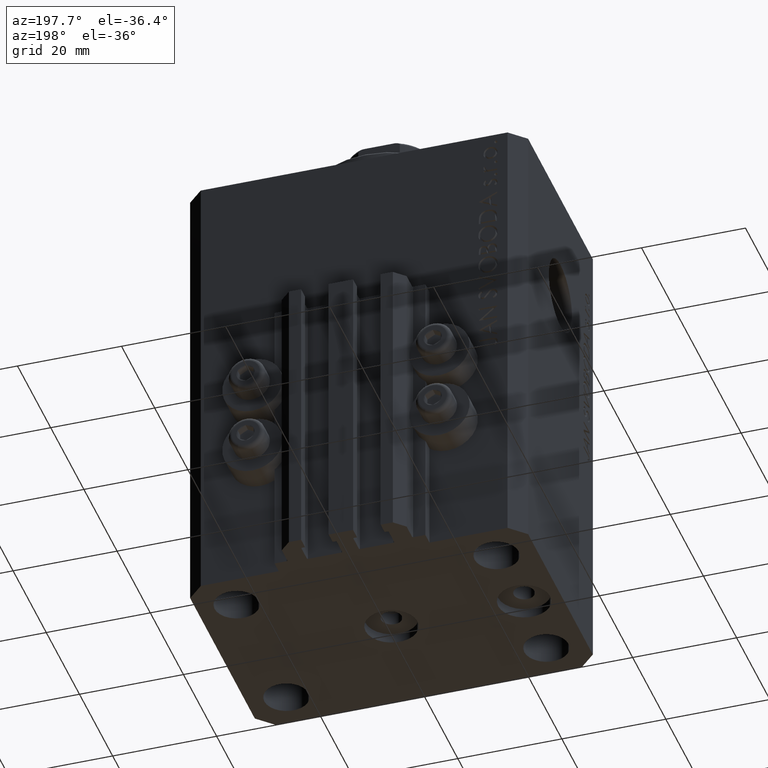
[diagram: clean part render]
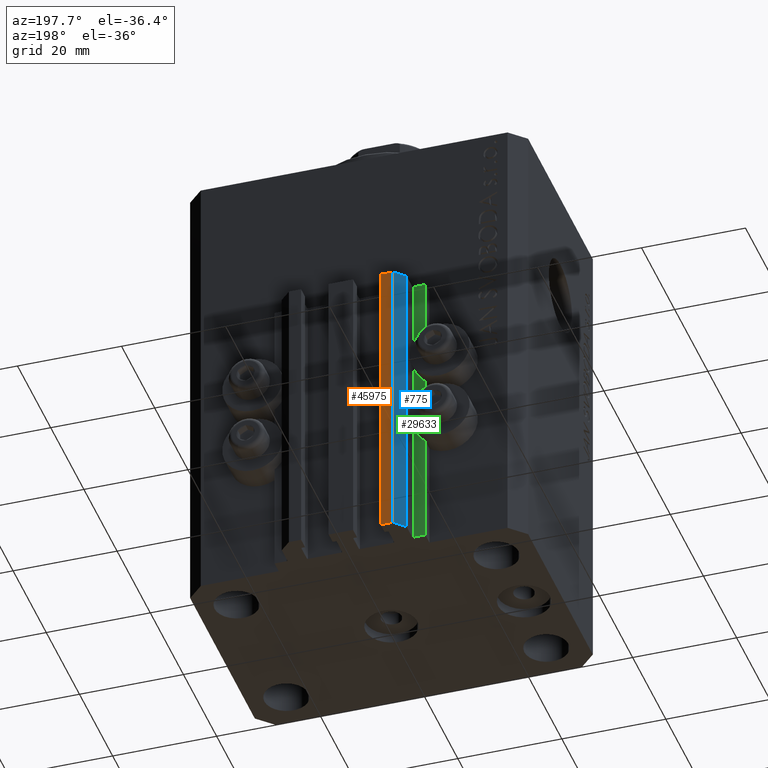
[diagram: same view with three faces highlighted in distinct colors, each labeled with its STEP entity id]
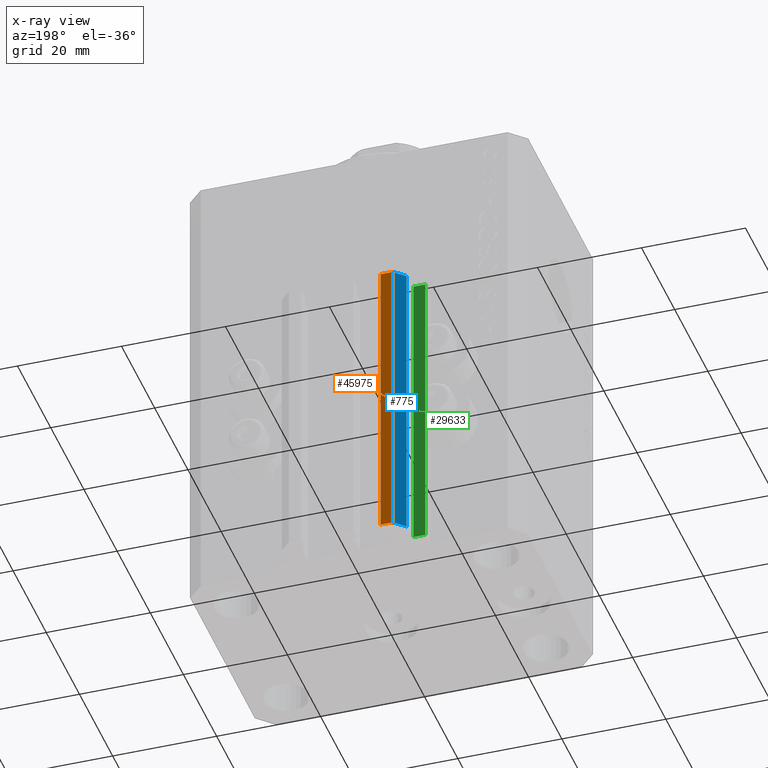
[diagram: x-ray of the same camera — body ghosted, the three highlighted faces saturated]
A machine part, auxiliary view with three faces highlighted in distinct colors.
The next image is the same camera in x-ray (body ghosted, the three faces saturated) — at least one of them is partly hidden behind the body in this view.
Their STEP definitions:

[orange] entity #45975 — the highlighted planar face has unit normal (0, 1, 0).
#1005 = CARTESIAN_POINT ( 'NONE',  ( -10.00000000000000000, 30.49999999999948841, -90.00000000000000000 ) ) ;
#1877 = CARTESIAN_POINT ( 'NONE',  ( -7.650000000000000355, 30.49999999999948486, -90.00000000000000000 ) ) ;
#2407 = VERTEX_POINT ( 'NONE', #22312 ) ;
#4062 = DIRECTION ( 'NONE',  ( -1.000000000000000000, 1.476360405086644852E-15, 0.000000000000000000 ) ) ;
#5125 = ORIENTED_EDGE ( 'NONE', *, *, #28945, .T. ) ;
#7080 = ORIENTED_EDGE ( 'NONE', *, *, #9353, .F. ) ;
#7967 = VERTEX_POINT ( 'NONE', #29293 ) ;
#9353 = EDGE_CURVE ( 'NONE', #11530, #32398, #13134, .T. ) ;
#10494 = VECTOR ( 'NONE', #41747, 1000.000000000000000 ) ;
#11008 = LINE ( 'NONE', #26127, #31550 ) ;
#11530 = VERTEX_POINT ( 'NONE', #42892 ) ;
#13134 = LINE ( 'NONE', #27298, #29483 ) ;
#14475 = CARTESIAN_POINT ( 'NONE',  ( -7.650000000000000355, 30.49999999999948486, -90.00000000000000000 ) ) ;
#15984 = EDGE_CURVE ( 'NONE', #11530, #2407, #32700, .T. ) ;
#16499 = DIRECTION ( 'NONE',  ( -1.000000000000000000, 1.476360405086644655E-15, 0.000000000000000000 ) ) ;
#19900 = CARTESIAN_POINT ( 'NONE',  ( -7.650000000000000355, 30.49999999999948486, -33.00000000000000000 ) ) ;
#22312 = CARTESIAN_POINT ( 'NONE',  ( -10.00000000000000000, 30.49999999999948841, -90.00000000000000000 ) ) ;
#26127 = CARTESIAN_POINT ( 'NONE',  ( -7.650000000000000355, 30.49999999999948486, -33.00000000000000000 ) ) ;
#27298 = CARTESIAN_POINT ( 'NONE',  ( -7.650000000000000355, 30.49999999999948486, -90.00000000000000000 ) ) ;
#28945 = EDGE_CURVE ( 'NONE', #2407, #7967, #33609, .T. ) ;
#29269 = AXIS2_PLACEMENT_3D ( 'NONE', #1877, #31355, #16499 ) ;
#29293 = CARTESIAN_POINT ( 'NONE',  ( -10.00000000000000000, 30.49999999999948841, -33.00000000000000000 ) ) ;
#29483 = VECTOR ( 'NONE', #31354, 1000.000000000000000 ) ;
#31354 = DIRECTION ( 'NONE',  ( 0.000000000000000000, 0.000000000000000000, 1.000000000000000000 ) ) ;
#31355 = DIRECTION ( 'NONE',  ( 1.476360405086644655E-15, 1.000000000000000000, -0.000000000000000000 ) ) ;
#31550 = VECTOR ( 'NONE', #4062, 1000.000000000000000 ) ;
#31824 = FACE_OUTER_BOUND ( 'NONE', #46357, .T. ) ;
#32398 = VERTEX_POINT ( 'NONE', #19900 ) ;
#32700 = LINE ( 'NONE', #14475, #39249 ) ;
#33609 = LINE ( 'NONE', #1005, #10494 ) ;
#33650 = ORIENTED_EDGE ( 'NONE', *, *, #45750, .F. ) ;
#34720 = PLANE ( 'NONE',  #29269 ) ;
#37775 = ORIENTED_EDGE ( 'NONE', *, *, #15984, .T. ) ;
#39249 = VECTOR ( 'NONE', #43491, 1000.000000000000000 ) ;
#41747 = DIRECTION ( 'NONE',  ( 0.000000000000000000, 0.000000000000000000, 1.000000000000000000 ) ) ;
#42892 = CARTESIAN_POINT ( 'NONE',  ( -7.650000000000000355, 30.49999999999948486, -90.00000000000000000 ) ) ;
#43491 = DIRECTION ( 'NONE',  ( -1.000000000000000000, 1.476360405086644852E-15, 0.000000000000000000 ) ) ;
#45750 = EDGE_CURVE ( 'NONE', #32398, #7967, #11008, .T. ) ;
#45975 = ADVANCED_FACE ( 'NONE', ( #31824 ), #34720, .T. ) ;
#46357 = EDGE_LOOP ( 'NONE', ( #33650, #7080, #37775, #5125 ) ) ;

[blue] entity #775 — the highlighted planar face has unit normal (-0.7071, 0.7071, 0).
#775 = ADVANCED_FACE ( 'NONE', ( #32081 ), #2365, .T. ) ;
#1005 = CARTESIAN_POINT ( 'NONE',  ( -10.00000000000000000, 30.49999999999948841, -90.00000000000000000 ) ) ;
#1382 = CARTESIAN_POINT ( 'NONE',  ( -10.00000000000000000, 30.49999999999948841, -90.00000000000000000 ) ) ;
#1484 = LINE ( 'NONE', #8921, #7884 ) ;
#2365 = PLANE ( 'NONE',  #26422 ) ;
#2407 = VERTEX_POINT ( 'NONE', #22312 ) ;
#3492 = ORIENTED_EDGE ( 'NONE', *, *, #26777, .F. ) ;
#3898 = DIRECTION ( 'NONE',  ( -0.7071067811865472397, -0.7071067811865479058, 0.000000000000000000 ) ) ;
#6920 = ORIENTED_EDGE ( 'NONE', *, *, #31797, .T. ) ;
#7357 = ORIENTED_EDGE ( 'NONE', *, *, #16576, .T. ) ;
#7884 = VECTOR ( 'NONE', #23311, 1000.000000000000000 ) ;
#7967 = VERTEX_POINT ( 'NONE', #29293 ) ;
#8921 = CARTESIAN_POINT ( 'NONE',  ( -12.00000000000000000, 28.49999999999948841, -90.00000000000000000 ) ) ;
#10494 = VECTOR ( 'NONE', #41747, 1000.000000000000000 ) ;
#10848 = LINE ( 'NONE', #14677, #21167 ) ;
#14677 = CARTESIAN_POINT ( 'NONE',  ( -10.00000000000000000, 30.49999999999948841, -33.00000000000000000 ) ) ;
#16576 = EDGE_CURVE ( 'NONE', #29953, #20885, #1484, .T. ) ;
#16980 = CARTESIAN_POINT ( 'NONE',  ( -10.00000000000000000, 30.49999999999948841, -90.00000000000000000 ) ) ;
#19809 = VECTOR ( 'NONE', #27030, 999.9999999999998863 ) ;
#20885 = VERTEX_POINT ( 'NONE', #47038 ) ;
#21167 = VECTOR ( 'NONE', #3898, 999.9999999999998863 ) ;
#22312 = CARTESIAN_POINT ( 'NONE',  ( -10.00000000000000000, 30.49999999999948841, -90.00000000000000000 ) ) ;
#23311 = DIRECTION ( 'NONE',  ( 0.000000000000000000, 0.000000000000000000, 1.000000000000000000 ) ) ;
#26422 = AXIS2_PLACEMENT_3D ( 'NONE', #16980, #28963, #47156 ) ;
#26777 = EDGE_CURVE ( 'NONE', #7967, #20885, #10848, .T. ) ;
#27030 = DIRECTION ( 'NONE',  ( -0.7071067811865472397, -0.7071067811865479058, 0.000000000000000000 ) ) ;
#28945 = EDGE_CURVE ( 'NONE', #2407, #7967, #33609, .T. ) ;
#28963 = DIRECTION ( 'NONE',  ( -0.7071067811865479058, 0.7071067811865472397, 0.000000000000000000 ) ) ;
#29293 = CARTESIAN_POINT ( 'NONE',  ( -10.00000000000000000, 30.49999999999948841, -33.00000000000000000 ) ) ;
#29953 = VERTEX_POINT ( 'NONE', #44628 ) ;
#31064 = ORIENTED_EDGE ( 'NONE', *, *, #28945, .F. ) ;
#31797 = EDGE_CURVE ( 'NONE', #2407, #29953, #41648, .T. ) ;
#32081 = FACE_OUTER_BOUND ( 'NONE', #39867, .T. ) ;
#33609 = LINE ( 'NONE', #1005, #10494 ) ;
#39867 = EDGE_LOOP ( 'NONE', ( #3492, #31064, #6920, #7357 ) ) ;
#41648 = LINE ( 'NONE', #1382, #19809 ) ;
#41747 = DIRECTION ( 'NONE',  ( 0.000000000000000000, 0.000000000000000000, 1.000000000000000000 ) ) ;
#44628 = CARTESIAN_POINT ( 'NONE',  ( -12.00000000000000000, 28.49999999999948841, -90.00000000000000000 ) ) ;
#47038 = CARTESIAN_POINT ( 'NONE',  ( -12.00000000000000000, 28.49999999999948841, -33.00000000000000000 ) ) ;
#47156 = DIRECTION ( 'NONE',  ( -0.7071067811865472397, -0.7071067811865479058, 0.000000000000000000 ) ) ;

[green] entity #29633 — the highlighted planar face has unit normal (0, 1, 0).
#336 = EDGE_LOOP ( 'NONE', ( #22829, #26528, #33931, #21361 ) ) ;
#915 = EDGE_CURVE ( 'NONE', #18126, #959, #26797, .T. ) ;
#959 = VERTEX_POINT ( 'NONE', #19831 ) ;
#2375 = VECTOR ( 'NONE', #18776, 1000.000000000000000 ) ;
#4412 = CARTESIAN_POINT ( 'NONE',  ( -12.20000000000000107, 24.99999999999948841, -90.00000000000000000 ) ) ;
#5348 = LINE ( 'NONE', #4412, #26792 ) ;
#8573 = DIRECTION ( 'NONE',  ( 0.000000000000000000, 0.000000000000000000, 1.000000000000000000 ) ) ;
#8706 = DIRECTION ( 'NONE',  ( -1.000000000000000000, 1.508455196501571429E-15, 0.000000000000000000 ) ) ;
#9683 = CARTESIAN_POINT ( 'NONE',  ( -12.20000000000000107, 24.99999999999948841, -33.00000000000000000 ) ) ;
#9914 = LINE ( 'NONE', #9683, #46404 ) ;
#11854 = DIRECTION ( 'NONE',  ( -1.000000000000000000, 1.508455196501571429E-15, 0.000000000000000000 ) ) ;
#15526 = CARTESIAN_POINT ( 'NONE',  ( -12.20000000000000107, 24.99999999999948841, -90.00000000000000000 ) ) ;
#18126 = VERTEX_POINT ( 'NONE', #20306 ) ;
#18776 = DIRECTION ( 'NONE',  ( 0.000000000000000000, 0.000000000000000000, 1.000000000000000000 ) ) ;
#19831 = CARTESIAN_POINT ( 'NONE',  ( -12.20000000000000107, 24.99999999999948841, -33.00000000000000000 ) ) ;
#20306 = CARTESIAN_POINT ( 'NONE',  ( -12.20000000000000107, 24.99999999999948841, -90.00000000000000000 ) ) ;
#20778 = CARTESIAN_POINT ( 'NONE',  ( -14.50000000000000000, 24.99999999999949196, -90.00000000000000000 ) ) ;
#21009 = LINE ( 'NONE', #20778, #2375 ) ;
#21361 = ORIENTED_EDGE ( 'NONE', *, *, #38289, .T. ) ;
#22829 = ORIENTED_EDGE ( 'NONE', *, *, #26663, .F. ) ;
#26528 = ORIENTED_EDGE ( 'NONE', *, *, #915, .F. ) ;
#26663 = EDGE_CURVE ( 'NONE', #959, #28829, #9914, .T. ) ;
#26792 = VECTOR ( 'NONE', #8706, 1000.000000000000000 ) ;
#26797 = LINE ( 'NONE', #15526, #42450 ) ;
#28829 = VERTEX_POINT ( 'NONE', #43681 ) ;
#29633 = ADVANCED_FACE ( 'NONE', ( #34372 ), #37735, .T. ) ;
#30822 = VERTEX_POINT ( 'NONE', #44105 ) ;
#31976 = AXIS2_PLACEMENT_3D ( 'NONE', #33905, #34144, #11854 ) ;
#33905 = CARTESIAN_POINT ( 'NONE',  ( -12.20000000000000107, 24.99999999999948841, -90.00000000000000000 ) ) ;
#33931 = ORIENTED_EDGE ( 'NONE', *, *, #35728, .T. ) ;
#34144 = DIRECTION ( 'NONE',  ( 1.508455196501571429E-15, 1.000000000000000000, -0.000000000000000000 ) ) ;
#34372 = FACE_OUTER_BOUND ( 'NONE', #336, .T. ) ;
#35728 = EDGE_CURVE ( 'NONE', #18126, #30822, #5348, .T. ) ;
#37735 = PLANE ( 'NONE',  #31976 ) ;
#38289 = EDGE_CURVE ( 'NONE', #30822, #28829, #21009, .T. ) ;
#39376 = DIRECTION ( 'NONE',  ( -1.000000000000000000, 1.508455196501571429E-15, 0.000000000000000000 ) ) ;
#42450 = VECTOR ( 'NONE', #8573, 1000.000000000000000 ) ;
#43681 = CARTESIAN_POINT ( 'NONE',  ( -14.50000000000000000, 24.99999999999949196, -33.00000000000000000 ) ) ;
#44105 = CARTESIAN_POINT ( 'NONE',  ( -14.50000000000000000, 24.99999999999949196, -90.00000000000000000 ) ) ;
#46404 = VECTOR ( 'NONE', #39376, 1000.000000000000000 ) ;